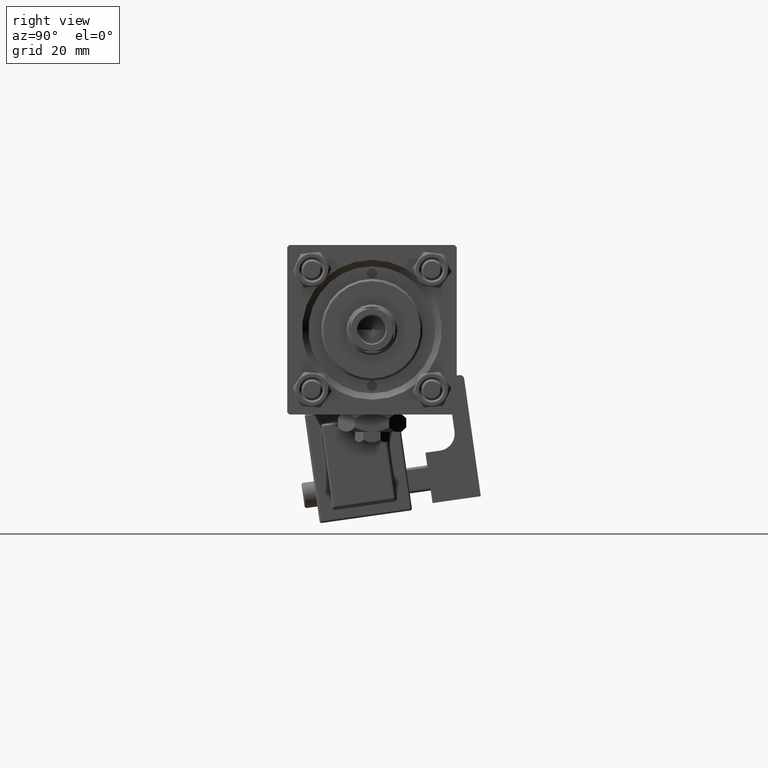
[diagram: clean part render]
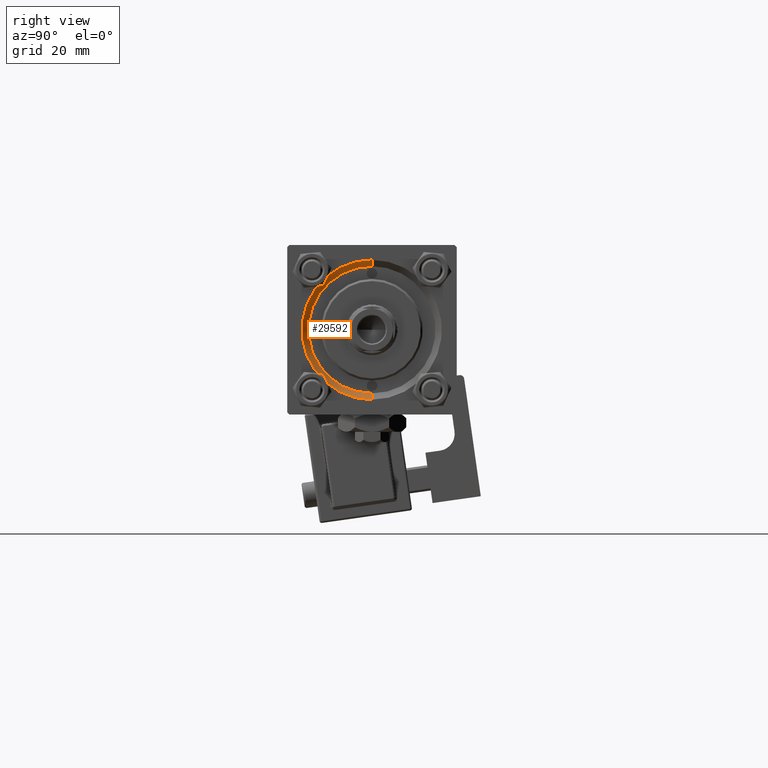
[diagram: same view with one face highlighted and labeled with its STEP entity id]
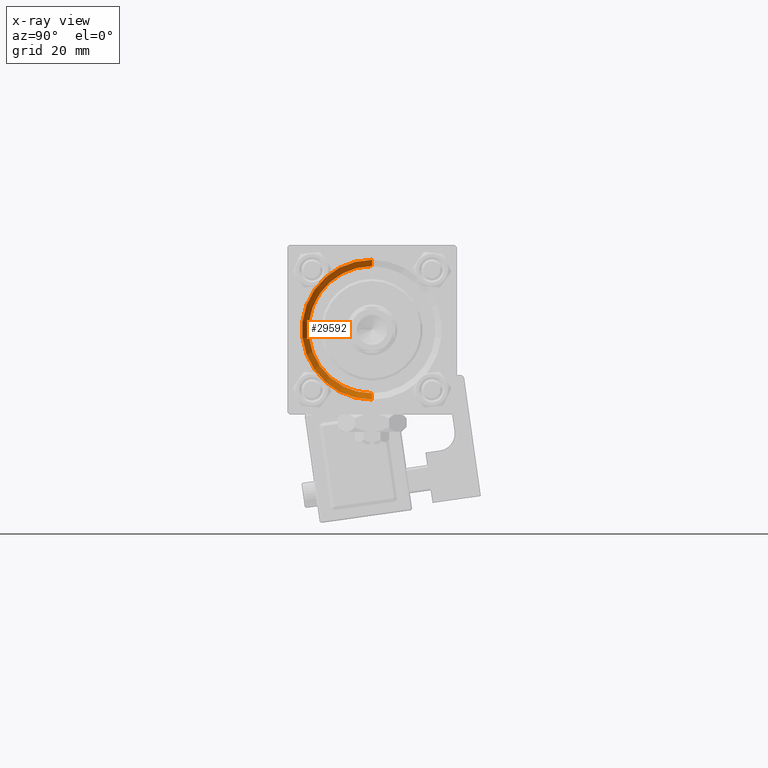
[diagram: x-ray of the same camera — body ghosted, the highlighted face saturated]
A machine part, right view. The second image highlights one B-rep face of the part: STEP entity #29592.
The next image is the same camera in x-ray: the body ghosted, the highlighted face saturated — about 0% of this face is hidden behind the body in this view.
In plain terms, the highlighted conical surface has half-angle 45 deg.
Its self-contained STEP definition (entity closure, byte-faithful):
#360 = LINE ( 'NONE', #33606, #37069 ) ;
#1704 = FACE_OUTER_BOUND ( 'NONE', #18787, .T. ) ;
#2647 = CARTESIAN_POINT ( 'NONE',  ( 117.5000000000000000, 1.836970198721029589E-15, 15.00000000000000000 ) ) ;
#2772 = CARTESIAN_POINT ( 'NONE',  ( 117.5000000000000000, 0.000000000000000000, 0.000000000000000000 ) ) ;
#4322 = CIRCLE ( 'NONE', #11289, 16.50000000000001421 ) ;
#4933 = CARTESIAN_POINT ( 'NONE',  ( 119.0000000000000142, 0.000000000000000000, -16.50000000000001421 ) ) ;
#6126 = CONICAL_SURFACE ( 'NONE', #49596, 15.00000000000000000, 0.7853981633974482790 ) ;
#6337 = DIRECTION ( 'NONE',  ( 0.000000000000000000, 0.000000000000000000, 1.000000000000000000 ) ) ;
#8154 = VERTEX_POINT ( 'NONE', #12227 ) ;
#9214 = VERTEX_POINT ( 'NONE', #4933 ) ;
#9613 = DIRECTION ( 'NONE',  ( 0.000000000000000000, 0.000000000000000000, -1.000000000000000000 ) ) ;
#11289 = AXIS2_PLACEMENT_3D ( 'NONE', #24417, #36953, #16256 ) ;
#11810 = LINE ( 'NONE', #49681, #42404 ) ;
#12227 = CARTESIAN_POINT ( 'NONE',  ( 117.5000000000000000, 0.000000000000000000, -15.00000000000000000 ) ) ;
#13442 = AXIS2_PLACEMENT_3D ( 'NONE', #2772, #48557, #6337 ) ;
#14503 = CARTESIAN_POINT ( 'NONE',  ( 117.5000000000000000, 0.000000000000000000, 0.000000000000000000 ) ) ;
#16256 = DIRECTION ( 'NONE',  ( 0.000000000000000000, 0.000000000000000000, 1.000000000000000000 ) ) ;
#17573 = ORIENTED_EDGE ( 'NONE', *, *, #29349, .F. ) ;
#17845 = ORIENTED_EDGE ( 'NONE', *, *, #25950, .T. ) ;
#18694 = EDGE_CURVE ( 'NONE', #19250, #8154, #20394, .T. ) ;
#18787 = EDGE_LOOP ( 'NONE', ( #52656, #17845, #17573, #39927 ) ) ;
#19250 = VERTEX_POINT ( 'NONE', #2647 ) ;
#20394 = CIRCLE ( 'NONE', #13442, 15.00000000000000000 ) ;
#23067 = EDGE_CURVE ( 'NONE', #8154, #9214, #360, .T. ) ;
#24417 = CARTESIAN_POINT ( 'NONE',  ( 119.0000000000000142, 0.000000000000000000, 0.000000000000000000 ) ) ;
#25950 = EDGE_CURVE ( 'NONE', #19250, #43169, #11810, .T. ) ;
#29349 = EDGE_CURVE ( 'NONE', #9214, #43169, #4322, .T. ) ;
#29592 = ADVANCED_FACE ( 'NONE', ( #1704 ), #6126, .F. ) ;
#33606 = CARTESIAN_POINT ( 'NONE',  ( 117.5000000000000000, 0.000000000000000000, -15.00000000000000000 ) ) ;
#36953 = DIRECTION ( 'NONE',  ( -1.000000000000000000, -0.000000000000000000, -0.000000000000000000 ) ) ;
#37069 = VECTOR ( 'NONE', #46945, 1000.000000000000114 ) ;
#39553 = DIRECTION ( 'NONE',  ( 1.000000000000000000, 0.000000000000000000, 0.000000000000000000 ) ) ;
#39927 = ORIENTED_EDGE ( 'NONE', *, *, #23067, .F. ) ;
#42404 = VECTOR ( 'NONE', #45306, 1000.000000000000114 ) ;
#43169 = VERTEX_POINT ( 'NONE', #52624 ) ;
#45306 = DIRECTION ( 'NONE',  ( 0.7071067811865474617, 8.659560562354932858E-17, 0.7071067811865474617 ) ) ;
#46945 = DIRECTION ( 'NONE',  ( 0.7071067811865474617, 0.000000000000000000, -0.7071067811865474617 ) ) ;
#48557 = DIRECTION ( 'NONE',  ( 1.000000000000000000, 0.000000000000000000, 0.000000000000000000 ) ) ;
#49596 = AXIS2_PLACEMENT_3D ( 'NONE', #14503, #39553, #9613 ) ;
#49681 = CARTESIAN_POINT ( 'NONE',  ( 117.5000000000000000, 1.836970198721029589E-15, 15.00000000000000000 ) ) ;
#52624 = CARTESIAN_POINT ( 'NONE',  ( 119.0000000000000142, 2.020667218593134678E-15, 16.50000000000001421 ) ) ;
#52656 = ORIENTED_EDGE ( 'NONE', *, *, #18694, .F. ) ;